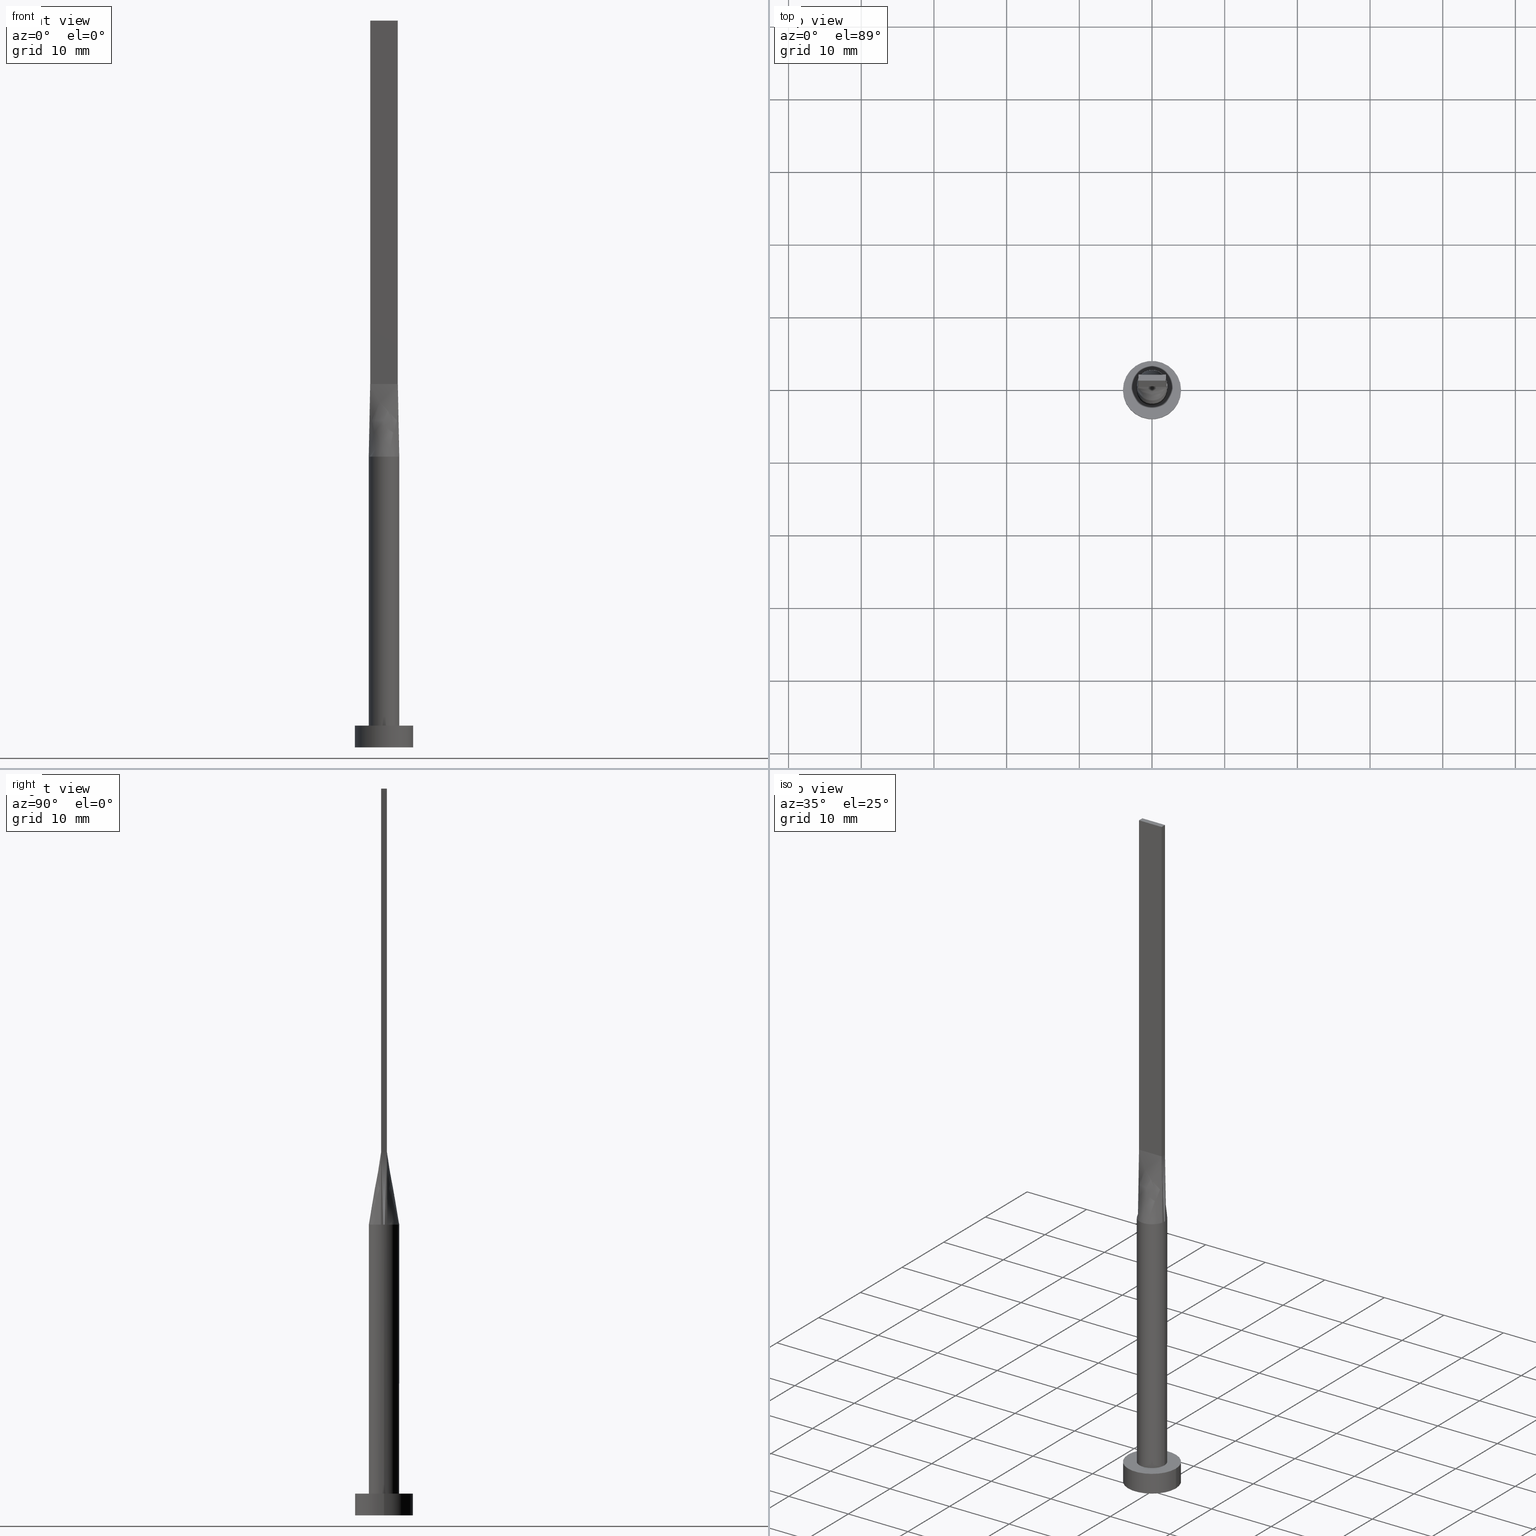
[diagram: canonical four-view strip — front | top / right | iso, engineering-drawing reading convention]
A machine part, canonical four-view strip (front | top / right | iso — engineering-drawing reading convention). The complete STEP part file that produces these views, byte-faithful:
ISO-10303-21;
HEADER;
FILE_DESCRIPTION (( 'STEP AP203' ),
    '1' );
FILE_NAME ('1cda.STEP',
    '2026-02-12T09:04:15',
    ( '' ),
    ( '' ),
    'SwSTEP 2.0',
    'SolidWorks 2019',
    '' );
FILE_SCHEMA (( 'CONFIG_CONTROL_DESIGN' ));
ENDSEC;

DATA;
#1 = DIRECTION ( 'NONE',  ( 1.000000000000000000, 0.000000000000000000, 0.000000000000000000 ) ) ;
#2 = APPROVAL ( #134, 'NEUR�EN�' ) ;
#3 = DIRECTION ( 'NONE',  ( -0.000000000000000000, -0.000000000000000000, -1.000000000000000000 ) ) ;
#4 = CARTESIAN_POINT ( 'NONE',  ( -2.054954548472173403, 0.4326220102046675064, 40.00000000000000000 ) ) ;
#5 = VERTEX_POINT ( 'NONE', #125 ) ;
#6 = ADVANCED_FACE ( 'NONE', ( #75 ), #292, .T. ) ;
#7 = CARTESIAN_POINT ( 'NONE',  ( -1.899999999999999689, 0.4000000000000002442, 50.00000000000000000 ) ) ;
#8 = COORDINATED_UNIVERSAL_TIME_OFFSET ( 1, 0, .AHEAD. ) ;
#9 = LINE ( 'NONE', #190, #352 ) ;
#10 = CARTESIAN_POINT ( 'NONE',  ( 1.899999999999999023, -0.3999999999999998002, 100.0000000000000000 ) ) ;
#11 = COORDINATED_UNIVERSAL_TIME_OFFSET ( 1, 0, .AHEAD. ) ;
#12 = CIRCLE ( 'NONE', #121, 4.000000000000000000 ) ;
#13 = CARTESIAN_POINT ( 'NONE',  ( 1.638039177766651200, -1.336522195786985279, 40.00000000000000000 ) ) ;
#14 = APPROVAL_ROLE ( '' ) ;
#15 = ORIENTED_EDGE ( 'NONE', *, *, #214, .T. ) ;
#16 = LINE ( 'NONE', #154, #310 ) ;
#17 = DIRECTION ( 'NONE',  ( 1.000000000000000000, 0.000000000000000000, 0.000000000000000000 ) ) ;
#18 = CARTESIAN_POINT ( 'NONE',  ( 0.6333333333333337478, -0.3999999999999997446, 50.00000000000000000 ) ) ;
#19 = ADVANCED_FACE ( 'NONE', ( #345 ), #430, .T. ) ;
#20 = CARTESIAN_POINT ( 'NONE',  ( 1.899999999999999689, 0.4000000000000002442, 100.0000000000000000 ) ) ;
#21 = ORIENTED_EDGE ( 'NONE', *, *, #422, .F. ) ;
#22 = ORIENTED_EDGE ( 'NONE', *, *, #285, .F. ) ;
#23 = AXIS2_PLACEMENT_3D ( 'NONE', #132, #80, #566 ) ;
#24 = LINE ( 'NONE', #72, #562 ) ;
#25 = DIRECTION ( 'NONE',  ( 0.000000000000000000, 0.000000000000000000, 1.000000000000000000 ) ) ;
#26 = CARTESIAN_POINT ( 'NONE',  ( 0.5670887265440297531, 2.040296735810463780, 40.00000000000000711 ) ) ;
#27 = CARTESIAN_POINT ( 'NONE',  ( -1.899999999999999689, 0.4000000000000002442, 50.00000000000000000 ) ) ;
#28 = CALENDAR_DATE ( 2026, 12, 2 ) ;
#29 = PRODUCT ( '1cda', '1cda', '', ( #258 ) ) ;
#30 = ORIENTED_EDGE ( 'NONE', *, *, #246, .T. ) ;
#31 = DIRECTION ( 'NONE',  ( 0.000000000000000000, 0.000000000000000000, 1.000000000000000000 ) ) ;
#32 = AXIS2_PLACEMENT_3D ( 'NONE', #241, #333, #508 ) ;
#33 = FACE_OUTER_BOUND ( 'NONE', #442, .T. ) ;
#34 = ADVANCED_FACE ( 'NONE', ( #301 ), #175, .F. ) ;
#35 = EDGE_LOOP ( 'NONE', ( #57, #495, #328, #332 ) ) ;
#36 = CARTESIAN_POINT ( 'NONE',  ( -0.5670887265440298641, 2.040296735810464668, 40.00000000000000711 ) ) ;
#37 = VECTOR ( 'NONE', #69, 1000.000000000000000 ) ;
#38 = ORIENTED_EDGE ( 'NONE', *, *, #108, .F. ) ;
#39 = DATE_TIME_ROLE ( 'creation_date' ) ;
#40 = VECTOR ( 'NONE', #498, 1000.000000000000000 ) ;
#41 = DIRECTION ( 'NONE',  ( 1.000000000000000000, 0.000000000000000000, -0.000000000000000000 ) ) ;
#42 = CARTESIAN_POINT ( 'NONE',  ( -1.899999999999999911, -0.3999999999999995781, 50.00000000000000000 ) ) ;
#43 = APPROVAL_STATUS ( 'not_yet_approved' ) ;
#44 = CC_DESIGN_DATE_AND_TIME_ASSIGNMENT ( #273, #265, ( #297 ) ) ;
#45 = CARTESIAN_POINT ( 'NONE',  ( -0.2839879338753514282, -2.100000000000000533, 39.99999999999999289 ) ) ;
#46 = VECTOR ( 'NONE', #106, 1000.000000000000000 ) ;
#47 = ORIENTED_EDGE ( 'NONE', *, *, #382, .T. ) ;
#48 = PLANE ( 'NONE',  #420 ) ;
#49 = CARTESIAN_POINT ( 'NONE',  ( -1.108333333333332504, -0.3999999999999995781, 50.00000000000000000 ) ) ;
#50 = ADVANCED_FACE ( 'NONE', ( #33 ), #380, .T. ) ;
#51 = FACE_OUTER_BOUND ( 'NONE', #161, .T. ) ;
#52 = CLOSED_SHELL ( 'NONE', ( #251, #197, #61, #118, #144, #414, #187, #453, #6, #50, #290, #34, #576, #470, #19 ) ) ;
#53 = DIRECTION ( 'NONE',  ( -0.000000000000000000, -0.000000000000000000, -1.000000000000000000 ) ) ;
#54 = DIRECTION ( 'NONE',  ( 1.000000000000000000, -8.881784197001252323E-16, 0.000000000000000000 ) ) ;
#55 = CARTESIAN_POINT ( 'NONE',  ( -0.5670887265440306413, -2.040296735810464668, 40.00000000000001421 ) ) ;
#56 = CIRCLE ( 'NONE', #426, 2.100000000000000089 ) ;
#57 = ORIENTED_EDGE ( 'NONE', *, *, #346, .T. ) ;
#58 = CARTESIAN_POINT ( 'NONE',  ( 1.899999999999999023, -0.3999999999999998002, 50.00000000000000000 ) ) ;
#59 = FACE_OUTER_BOUND ( 'NONE', #35, .T. ) ;
#60 = ORIENTED_EDGE ( 'NONE', *, *, #275, .T. ) ;
#61 = ADVANCED_FACE ( 'NONE', ( #483 ), #95, .T. ) ;
#62 = VERTEX_POINT ( 'NONE', #142 ) ;
#63 = DIRECTION ( 'NONE',  ( 0.000000000000000000, 0.000000000000000000, 1.000000000000000000 ) ) ;
#64 = CARTESIAN_POINT ( 'NONE',  ( -1.960396204527856456, 0.7808940436533434726, 40.00000000000000000 ) ) ;
#65 = ORIENTED_EDGE ( 'NONE', *, *, #393, .T. ) ;
#66 = CC_DESIGN_PERSON_AND_ORGANIZATION_ASSIGNMENT ( #497, #104, ( #503 ) ) ;
#67 = CARTESIAN_POINT ( 'NONE',  ( 0.2839879338753505955, 2.100000000000000533, 40.00000000000000000 ) ) ;
#68 = VECTOR ( 'NONE', #386, 1000.000000000000000 ) ;
#69 = DIRECTION ( 'NONE',  ( -1.000000000000000000, -0.000000000000000000, -0.000000000000000000 ) ) ;
#70 = EDGE_CURVE ( 'NONE', #5, #515, #322, .T. ) ;
#71 = PRODUCT_DEFINITION_SHAPE ( 'NONE', 'NONE',  #546 ) ;
#72 = CARTESIAN_POINT ( 'NONE',  ( 4.000000000000000000, 4.898587196589412829E-16, 3.000000000000000000 ) ) ;
#73 = EDGE_LOOP ( 'NONE', ( #65, #92, #78, #309, #208 ) ) ;
#74 = CC_DESIGN_PERSON_AND_ORGANIZATION_ASSIGNMENT ( #428, #388, ( #546 ) ) ;
#75 = FACE_OUTER_BOUND ( 'NONE', #222, .T. ) ;
#76 =( NAMED_UNIT ( * ) PLANE_ANGLE_UNIT ( ) SI_UNIT ( $, .RADIAN. ) );
#77 = LOCAL_TIME ( 10, 4, 15.00000000000000000, #8 ) ;
#78 = ORIENTED_EDGE ( 'NONE', *, *, #81, .T. ) ;
#79 = ORIENTED_EDGE ( 'NONE', *, *, #336, .T. ) ;
#80 = DIRECTION ( 'NONE',  ( 5.706327223607920020E-17, 1.000000000000000000, -0.000000000000000000 ) ) ;
#81 = EDGE_CURVE ( 'NONE', #362, #515, #9, .T. ) ;
#82 = VERTEX_POINT ( 'NONE', #441 ) ;
#83 = CARTESIAN_POINT ( 'NONE',  ( -1.899999999999999689, 0.4000000000000002442, 100.0000000000000000 ) ) ;
#84 = CARTESIAN_POINT ( 'NONE',  ( 0.1583333333333336868, 0.4000000000000001887, 50.00000000000000711 ) ) ;
#85 =( NAMED_UNIT ( * ) SI_UNIT ( $, .STERADIAN. ) SOLID_ANGLE_UNIT ( ) );
#86 = CARTESIAN_POINT ( 'NONE',  ( -1.288188016604684183, 1.676316068528189263, 40.00000000000000711 ) ) ;
#87 = VECTOR ( 'NONE', #335, 1000.000000000000000 ) ;
#88 = DATE_AND_TIME ( #28, #180 ) ;
#89 = CARTESIAN_POINT ( 'NONE',  ( -1.960396204527856456, -0.7808940436533431395, 40.00000000000000711 ) ) ;
#90 = CARTESIAN_POINT ( 'NONE',  ( 2.054954548472172959, 0.4326220102046685612, 40.00000000000000000 ) ) ;
#91 = CARTESIAN_POINT ( 'NONE',  ( -2.100000000000000089, 0.000000000000000000, 3.000000000000000000 ) ) ;
#92 = ORIENTED_EDGE ( 'NONE', *, *, #177, .T. ) ;
#93 = ORIENTED_EDGE ( 'NONE', *, *, #393, .F. ) ;
#94 = FACE_OUTER_BOUND ( 'NONE', #188, .T. ) ;
#95 = CYLINDRICAL_SURFACE ( 'NONE', #116, 4.000000000000000000 ) ;
#96 = LOCAL_TIME ( 10, 4, 15.00000000000000000, #489 ) ;
#97 = ORIENTED_EDGE ( 'NONE', *, *, #514, .F. ) ;
#98 = DIRECTION ( 'NONE',  ( 1.000000000000000000, -5.706327223607918787E-17, 0.000000000000000000 ) ) ;
#99 = CARTESIAN_POINT ( 'NONE',  ( -1.960396204527856456, 0.7808940436533434726, 40.00000000000000000 ) ) ;
#100 = DIRECTION ( 'NONE',  ( -8.131516293641283255E-16, -1.000000000000000000, 0.000000000000000000 ) ) ;
#101 = PERSON ( 'NEUR�EN�', 'NEUR�EN�', 'NEUR�EN�', ('NEUR�EN�'), ('NEUR�EN�'), ('NEUR�EN�') ) ;
#102 = CARTESIAN_POINT ( 'NONE',  ( -0.6333333333333325266, -0.3999999999999996336, 50.00000000000000000 ) ) ;
#103 = ORIENTED_EDGE ( 'NONE', *, *, #285, .T. ) ;
#104 = PERSON_AND_ORGANIZATION_ROLE ( 'design_supplier' ) ;
#105 = ORIENTED_EDGE ( 'NONE', *, *, #230, .T. ) ;
#106 = DIRECTION ( 'NONE',  ( 1.000000000000000000, -5.706327223607920020E-17, 0.000000000000000000 ) ) ;
#107 = CARTESIAN_POINT ( 'NONE',  ( -1.638039177766652976, 1.336522195786985057, 40.00000000000000711 ) ) ;
#108 = EDGE_CURVE ( 'NONE', #533, #558, #405, .T. ) ;
#109 = VERTEX_POINT ( 'NONE', #91 ) ;
#110 = APPROVAL_PERSON_ORGANIZATION ( #127, #2, #296 ) ;
#111 = CARTESIAN_POINT ( 'NONE',  ( 0.2839879338753495963, -2.100000000000000533, 39.99999999999998579 ) ) ;
#112 = LINE ( 'NONE', #242, #87 ) ;
#113 = MANIFOLD_SOLID_BREP ( 'P�idat vysunut�m5', #52 ) ;
#114 = ORIENTED_EDGE ( 'NONE', *, *, #526, .T. ) ;
#115 = ORIENTED_EDGE ( 'NONE', *, *, #214, .F. ) ;
#116 = AXIS2_PLACEMENT_3D ( 'NONE', #396, #149, #535 ) ;
#117 = CARTESIAN_POINT ( 'NONE',  ( 2.055132260641998609, 0.4326595789354660826, 40.00000000000000000 ) ) ;
#118 = ADVANCED_FACE ( 'NONE', ( #181, #542 ), #232, .T. ) ;
#119 = CARTESIAN_POINT ( 'NONE',  ( 0.000000000000000000, 0.000000000000000000, 40.00000000000000000 ) ) ;
#120 = ORIENTED_EDGE ( 'NONE', *, *, #447, .T. ) ;
#121 = AXIS2_PLACEMENT_3D ( 'NONE', #416, #376, #210 ) ;
#122 = CARTESIAN_POINT ( 'NONE',  ( -2.055145036631130129, -0.4326623253166036465, 40.00000000000000000 ) ) ;
#123 = CARTESIAN_POINT ( 'NONE',  ( -2.084662771283844585, 0.2915079518492303956, 40.00000000000000000 ) ) ;
#124 = AXIS2_PLACEMENT_3D ( 'NONE', #318, #539, #41 ) ;
#125 = CARTESIAN_POINT ( 'NONE',  ( 1.899999999999999023, -0.3999999999999998002, 50.00000000000000000 ) ) ;
#126 = EDGE_CURVE ( 'NONE', #567, #82, #521, .T. ) ;
#127 = PERSON_AND_ORGANIZATION ( #101, #248 ) ;
#128 = VECTOR ( 'NONE', #379, 1000.000000000000000 ) ;
#129 = CARTESIAN_POINT ( 'NONE',  ( 0.6333333333333336368, 0.4000000000000001887, 50.00000000000000711 ) ) ;
#130 = DIRECTION ( 'NONE',  ( -2.710505431213761578E-16, -1.000000000000000000, 0.000000000000000000 ) ) ;
#131 = CARTESIAN_POINT ( 'NONE',  ( 0.7916666666666668517, 0.4000000000000001887, 50.00000000000000711 ) ) ;
#132 = CARTESIAN_POINT ( 'NONE',  ( -1.899999999999999911, -0.3999999999999995781, 100.0000000000000000 ) ) ;
#133 = CARTESIAN_POINT ( 'NONE',  ( 2.054954548472173403, 0.4326220102046680616, 40.00000000000000000 ) ) ;
#134 = APPROVAL_STATUS ( 'not_yet_approved' ) ;
#135 = CARTESIAN_POINT ( 'NONE',  ( 0.000000000000000000, 0.000000000000000000, 40.00000000000000000 ) ) ;
#136 = AXIS2_PLACEMENT_3D ( 'NONE', #314, #263, #189 ) ;
#137 = ORIENTED_EDGE ( 'NONE', *, *, #246, .F. ) ;
#138 = CALENDAR_DATE ( 2026, 12, 2 ) ;
#139 = DIRECTION ( 'NONE',  ( 1.000000000000000000, 0.000000000000000000, 0.000000000000000000 ) ) ;
#140 = VERTEX_POINT ( 'NONE', #494 ) ;
#141 = CARTESIAN_POINT ( 'NONE',  ( 1.899999999999999689, -0.1333333333333334147, 50.00000000000000000 ) ) ;
#142 = CARTESIAN_POINT ( 'NONE',  ( 2.100000000000000089, 2.571758278209441957E-16, 3.000000000000000000 ) ) ;
#143 = DIRECTION ( 'NONE',  ( -1.000000000000000000, 8.131516293641283255E-16, 0.000000000000000000 ) ) ;
#144 = ADVANCED_FACE ( 'NONE', ( #574 ), #271, .F. ) ;
#145 = CARTESIAN_POINT ( 'NONE',  ( -2.019676033883313959, 0.6001949545017503107, 39.99999999999999289 ) ) ;
#146 = VECTOR ( 'NONE', #465, 1000.000000000000227 ) ;
#147 = FACE_OUTER_BOUND ( 'NONE', #73, .T. ) ;
#148 = PERSON_AND_ORGANIZATION ( #101, #248 ) ;
#149 = DIRECTION ( 'NONE',  ( -0.000000000000000000, -0.000000000000000000, -1.000000000000000000 ) ) ;
#150 = ORIENTED_EDGE ( 'NONE', *, *, #163, .T. ) ;
#151 = CARTESIAN_POINT ( 'NONE',  ( -1.899999999999999911, -0.3999999999999995781, 100.0000000000000000 ) ) ;
#152 = CC_DESIGN_PERSON_AND_ORGANIZATION_ASSIGNMENT ( #433, #523, ( #29 ) ) ;
#153 = EDGE_LOOP ( 'NONE', ( #359, #47, #331, #467, #38, #458 ) ) ;
#154 = CARTESIAN_POINT ( 'NONE',  ( -1.977477274236086657, -0.4163110051023335423, 45.00000000000000000 ) ) ;
#155 = APPROVAL ( #43, 'NEUR�EN�' ) ;
#156 = DIRECTION ( 'NONE',  ( -0.000000000000000000, -0.000000000000000000, -1.000000000000000000 ) ) ;
#157 = AXIS2_PLACEMENT_3D ( 'NONE', #415, #63, #371 ) ;
#158 = ORIENTED_EDGE ( 'NONE', *, *, #354, .T. ) ;
#159 = CYLINDRICAL_SURFACE ( 'NONE', #32, 4.000000000000000000 ) ;
#160 = CARTESIAN_POINT ( 'NONE',  ( 1.288188016604684183, 1.676316068528189041, 40.00000000000000711 ) ) ;
#161 = EDGE_LOOP ( 'NONE', ( #319, #93, #115, #373, #150, #279 ) ) ;
#162 = ORIENTED_EDGE ( 'NONE', *, *, #475, .T. ) ;
#163 = EDGE_CURVE ( 'NONE', #558, #109, #179, .T. ) ;
#164 = ORIENTED_EDGE ( 'NONE', *, *, #447, .F. ) ;
#165 = AXIS2_PLACEMENT_3D ( 'NONE', #313, #261, #306 ) ;
#166 = CARTESIAN_POINT ( 'NONE',  ( -4.000000000000000000, 0.000000000000000000, 3.000000000000000000 ) ) ;
#167 = DIRECTION ( 'NONE',  ( -0.000000000000000000, -0.000000000000000000, -1.000000000000000000 ) ) ;
#168 = ORIENTED_EDGE ( 'NONE', *, *, #561, .T. ) ;
#169 = CARTESIAN_POINT ( 'NONE',  ( -2.054954548472173403, 0.4326220102046679505, 40.00000000000000000 ) ) ;
#170 = CARTESIAN_POINT ( 'NONE',  ( -1.899999999999999467, 0.1333333333333334703, 50.00000000000000000 ) ) ;
#171 = APPLICATION_PROTOCOL_DEFINITION ( 'international standard', 'config_control_design', 1994, #327 ) ;
#172 = CARTESIAN_POINT ( 'NONE',  ( -2.054954548472173403, -0.4326220102046674509, 40.00000000000000000 ) ) ;
#173 = CARTESIAN_POINT ( 'NONE',  ( 1.899999999999999689, 0.4000000000000002442, 50.00000000000000000 ) ) ;
#174 = VECTOR ( 'NONE', #364, 1000.000000000000000 ) ;
#175 = PLANE ( 'NONE',  #293 ) ;
#176 = CALENDAR_DATE ( 2026, 12, 2 ) ;
#177 = EDGE_CURVE ( 'NONE', #466, #362, #341, .T. ) ;
#178 = EDGE_LOOP ( 'NONE', ( #193, #323 ) ) ;
#179 = LINE ( 'NONE', #226, #499 ) ;
#180 = LOCAL_TIME ( 10, 4, 15.00000000000000000, #350 ) ;
#181 = FACE_BOUND ( 'NONE', #178, .T. ) ;
#182 = VECTOR ( 'NONE', #392, 1000.000000000000000 ) ;
#183 = ORIENTED_EDGE ( 'NONE', *, *, #300, .F. ) ;
#184 = CARTESIAN_POINT ( 'NONE',  ( 1.899999999999999023, -0.3999999999999998002, 100.0000000000000000 ) ) ;
#185 = CARTESIAN_POINT ( 'NONE',  ( -1.741666666666666474, 0.4000000000000002442, 50.00000000000000000 ) ) ;
#186 = ORIENTED_EDGE ( 'NONE', *, *, #354, .F. ) ;
#187 = ADVANCED_FACE ( 'NONE', ( #274 ), #245, .T. ) ;
#188 = EDGE_LOOP ( 'NONE', ( #511, #97, #164, #168 ) ) ;
#189 = DIRECTION ( 'NONE',  ( 1.000000000000000000, 0.000000000000000000, 0.000000000000000000 ) ) ;
#190 = CARTESIAN_POINT ( 'NONE',  ( 1.977477274236086213, 0.4163110051023343749, 45.00000000000000000 ) ) ;
#191 = LINE ( 'NONE', #229, #434 ) ;
#192 = PERSON_AND_ORGANIZATION ( #101, #248 ) ;
#193 = ORIENTED_EDGE ( 'NONE', *, *, #404, .F. ) ;
#194 = CARTESIAN_POINT ( 'NONE',  ( -1.288188016604684627, -1.676316068528187930, 39.99999999999998579 ) ) ;
#195 =( GEOMETRIC_REPRESENTATION_CONTEXT ( 3 ) GLOBAL_UNCERTAINTY_ASSIGNED_CONTEXT ( ( #464 ) ) GLOBAL_UNIT_ASSIGNED_CONTEXT ( ( #356, #76, #85 ) ) REPRESENTATION_CONTEXT ( 'NONE', 'WORKASPACE' ) );
#196 = CARTESIAN_POINT ( 'NONE',  ( 1.899999999999999911, -0.3999999999999998002, 50.00000000000000000 ) ) ;
#197 = ADVANCED_FACE ( 'NONE', ( #555 ), #159, .T. ) ;
#198 = CARTESIAN_POINT ( 'NONE',  ( 2.019676033883313071, -0.6001949545017514209, 40.00000000000000711 ) ) ;
#199 = PERSON_AND_ORGANIZATION_ROLE ( 'creator' ) ;
#200 = ORIENTED_EDGE ( 'NONE', *, *, #561, .F. ) ;
#201 = CARTESIAN_POINT ( 'NONE',  ( 1.108333333333333171, -0.3999999999999997446, 50.00000000000000000 ) ) ;
#202 = LINE ( 'NONE', #510, #554 ) ;
#203 = EDGE_LOOP ( 'NONE', ( #79, #114, #553, #120 ) ) ;
#204 = CARTESIAN_POINT ( 'NONE',  ( 0.7916666666666667407, -0.3999999999999997446, 50.00000000000000000 ) ) ;
#205 = LINE ( 'NONE', #519, #504 ) ;
#206 = CIRCLE ( 'NONE', #136, 2.100000000000000089 ) ;
#207 = CARTESIAN_POINT ( 'NONE',  ( 0.000000000000000000, 0.000000000000000000, 3.000000000000000000 ) ) ;
#208 = ORIENTED_EDGE ( 'NONE', *, *, #475, .F. ) ;
#209 = EDGE_CURVE ( 'NONE', #463, #343, #16, .T. ) ;
#210 = DIRECTION ( 'NONE',  ( 1.000000000000000000, 0.000000000000000000, 0.000000000000000000 ) ) ;
#211 = B_SPLINE_SURFACE_WITH_KNOTS ( 'NONE', 3, 1, ( 
 ( #235, #196 ),
 ( #487, #541 ),
 ( #481, #141 ),
 ( #320, #496 ),
 ( #239, #370 ),
 ( #90, #406 ) ),
 .UNSPECIFIED., .F., .F., .F.,
 ( 4, 2, 4 ),
 ( 2, 2 ),
 ( 0.000000000000000000, 0.5000000000000000000, 1.000000000000000000 ),
 ( 0.000000000000000000, 1.000000000000000000 ),
 .UNSPECIFIED. ) ;
#212 = CARTESIAN_POINT ( 'NONE',  ( 1.769939800381044259, 1.149026496286139620, 40.00000000000000000 ) ) ;
#213 = AXIS2_PLACEMENT_3D ( 'NONE', #20, #337, #281 ) ;
#214 = EDGE_CURVE ( 'NONE', #343, #513, #538, .T. ) ;
#215 = DIRECTION ( 'NONE',  ( 1.000000000000000000, -2.710505431213761578E-16, 0.000000000000000000 ) ) ;
#216 = APPROVAL_STATUS ( 'not_yet_approved' ) ;
#217 = CARTESIAN_POINT ( 'NONE',  ( 1.960396204527856900, 0.7808940436533436946, 40.00000000000002132 ) ) ;
#218 = DIRECTION ( 'NONE',  ( 1.000000000000000000, 0.000000000000000000, 0.000000000000000000 ) ) ;
#219 = CARTESIAN_POINT ( 'NONE',  ( 1.899999999999999689, 0.4000000000000002442, 50.00000000000000000 ) ) ;
#220 = EDGE_CURVE ( 'NONE', #484, #502, #549, .T. ) ;
#221 = AXIS2_PLACEMENT_3D ( 'NONE', #531, #31, #218 ) ;
#222 = EDGE_LOOP ( 'NONE', ( #291, #536, #507, #578, #557 ) ) ;
#223 = CARTESIAN_POINT ( 'NONE',  ( -2.099758441344840243, -1.448674240509545331E-15, 40.00000000000000000 ) ) ;
#224 = CARTESIAN_POINT ( 'NONE',  ( -1.638039177766652976, 1.336522195786985057, 40.00000000000000711 ) ) ;
#225 = PERSON_AND_ORGANIZATION ( #101, #248 ) ;
#226 = CARTESIAN_POINT ( 'NONE',  ( -2.100000000000000089, 0.000000000000000000, 40.00000000000000000 ) ) ;
#227 = VERTEX_POINT ( 'NONE', #280 ) ;
#228 = ORIENTED_EDGE ( 'NONE', *, *, #526, .F. ) ;
#229 = CARTESIAN_POINT ( 'NONE',  ( 1.977477274236086213, -0.4163110051023340419, 45.00000000000000000 ) ) ;
#230 = EDGE_CURVE ( 'NONE', #140, #282, #472, .T. ) ;
#231 = CC_DESIGN_APPROVAL ( #564, ( #503 ) ) ;
#232 = PLANE ( 'NONE',  #124 ) ;
#233 = ORIENTED_EDGE ( 'NONE', *, *, #422, .T. ) ;
#234 = ORIENTED_EDGE ( 'NONE', *, *, #363, .T. ) ;
#235 = CARTESIAN_POINT ( 'NONE',  ( 2.054954548472172959, -0.4326220102046691163, 40.00000000000000000 ) ) ;
#236 = CARTESIAN_POINT ( 'NONE',  ( -1.583333333333333037, 0.4000000000000002442, 50.00000000000000000 ) ) ;
#237 = CARTESIAN_POINT ( 'NONE',  ( 2.100000000000000089, 2.571758278209441957E-16, 40.00000000000000000 ) ) ;
#238 = CARTESIAN_POINT ( 'NONE',  ( -1.638039177766652310, -1.336522195786983724, 39.99999999999999289 ) ) ;
#239 = CARTESIAN_POINT ( 'NONE',  ( 2.084662771283844140, 0.2915079518492307287, 40.00000000000000000 ) ) ;
#240 = DIRECTION ( 'NONE',  ( -0.01549351246150988334, -0.003261792097160004338, 0.9998746480354023802 ) ) ;
#241 = CARTESIAN_POINT ( 'NONE',  ( 0.000000000000000000, 0.000000000000000000, 3.000000000000000000 ) ) ;
#242 = CARTESIAN_POINT ( 'NONE',  ( -1.899999999999999911, -0.3999999999999995781, 100.0000000000000000 ) ) ;
#243 = CARTESIAN_POINT ( 'NONE',  ( 2.054954548472172959, -0.4326220102046682281, 40.00000000000000000 ) ) ;
#244 = LINE ( 'NONE', #166, #368 ) ;
#245 = B_SPLINE_SURFACE_WITH_KNOTS ( 'NONE', 3, 1, ( 
 ( #358, #480 ),
 ( #355, #450 ),
 ( #89, #369 ),
 ( #266, #547 ),
 ( #238, #49 ),
 ( #194, #490 ),
 ( #452, #102 ),
 ( #55, #437 ),
 ( #45, #399 ),
 ( #111, #412 ),
 ( #329, #418 ),
 ( #325, #18 ),
 ( #377, #204 ),
 ( #13, #201 ),
 ( #505, #500 ),
 ( #374, #551 ),
 ( #198, #283 ),
 ( #243, #58 ) ),
 .UNSPECIFIED., .F., .F., .F.,
 ( 4, 2, 2, 2, 2, 2, 2, 2, 4 ),
 ( 2, 2 ),
 ( 0.000000000000000000, 0.1250000000000000833, 0.2500000000000001110, 0.3750000000000001110, 0.5000000000000001110, 0.6250000000000001110, 0.7500000000000000000, 0.8750000000000000000, 1.000000000000000000 ),
 ( 0.000000000000000000, 1.000000000000000000 ),
 .UNSPECIFIED. ) ;
#246 = EDGE_CURVE ( 'NONE', #82, #567, #12, .T. ) ;
#247 = CARTESIAN_POINT ( 'NONE',  ( -1.288188016604684183, 1.676316068528189263, 40.00000000000000711 ) ) ;
#248 = ORGANIZATION ( 'NEUR�EN�', 'NEUR�EN�', '' ) ;
#249 = CARTESIAN_POINT ( 'NONE',  ( 2.055132260641998609, 0.4326595789354660826, 40.00000000000000000 ) ) ;
#250 = CARTESIAN_POINT ( 'NONE',  ( 2.019676033883313515, 0.6001949545017501997, 39.99999999999998579 ) ) ;
#251 = ADVANCED_FACE ( 'NONE', ( #468 ), #381, .T. ) ;
#252 = CARTESIAN_POINT ( 'NONE',  ( -2.099516882689679953, -0.1457539759246147815, 40.00000000000000000 ) ) ;
#253 = CARTESIAN_POINT ( 'NONE',  ( 0.000000000000000000, 0.000000000000000000, 100.0000000000000000 ) ) ;
#254 = LINE ( 'NONE', #395, #68 ) ;
#255 = EDGE_CURVE ( 'NONE', #533, #444, #421, .T. ) ;
#256 = CARTESIAN_POINT ( 'NONE',  ( -2.099516882689679953, 0.1457539759246153366, 40.00000000000000000 ) ) ;
#257 = CARTESIAN_POINT ( 'NONE',  ( 1.266666666666666607, 0.4000000000000001887, 50.00000000000000000 ) ) ;
#258 = MECHANICAL_CONTEXT ( 'NONE', #327, 'mechanical' ) ;
#259 = AXIS2_PLACEMENT_3D ( 'NONE', #119, #423, #560 ) ;
#260 = CARTESIAN_POINT ( 'NONE',  ( -0.7916666666666662966, 0.4000000000000002442, 50.00000000000000000 ) ) ;
#261 = DIRECTION ( 'NONE',  ( 0.000000000000000000, 0.000000000000000000, 1.000000000000000000 ) ) ;
#262 = ORIENTED_EDGE ( 'NONE', *, *, #81, .F. ) ;
#263 = DIRECTION ( 'NONE',  ( 0.000000000000000000, 0.000000000000000000, 1.000000000000000000 ) ) ;
#264 = EDGE_CURVE ( 'NONE', #558, #343, #338, .T. ) ;
#265 = DATE_TIME_ROLE ( 'classification_date' ) ;
#266 = CARTESIAN_POINT ( 'NONE',  ( -1.769939800381044481, -1.149026496286139176, 40.00000000000000000 ) ) ;
#267 = ORIENTED_EDGE ( 'NONE', *, *, #126, .T. ) ;
#268 = EDGE_LOOP ( 'NONE', ( #543, #137 ) ) ;
#269 = CARTESIAN_POINT ( 'NONE',  ( 0.000000000000000000, 0.000000000000000000, 40.00000000000000000 ) ) ;
#270 = CIRCLE ( 'NONE', #357, 4.000000000000000000 ) ;
#271 = PLANE ( 'NONE',  #436 ) ;
#272 = CARTESIAN_POINT ( 'NONE',  ( 2.099758441344840243, 4.928843353830161703E-16, 40.00000000000000000 ) ) ;
#273 = DATE_AND_TIME ( #138, #96 ) ;
#274 = FACE_OUTER_BOUND ( 'NONE', #460, .T. ) ;
#275 = EDGE_CURVE ( 'NONE', #227, #444, #202, .T. ) ;
#276 = DIRECTION ( 'NONE',  ( -0.01549351246150994753, 0.003261792097160015180, 0.9998746480354023802 ) ) ;
#277 = CARTESIAN_POINT ( 'NONE',  ( 0.000000000000000000, 0.000000000000000000, 0.000000000000000000 ) ) ;
#278 = PERSON_AND_ORGANIZATION ( #101, #248 ) ;
#279 = ORIENTED_EDGE ( 'NONE', *, *, #404, .T. ) ;
#280 = CARTESIAN_POINT ( 'NONE',  ( -1.899999999999999689, 0.4000000000000002442, 100.0000000000000000 ) ) ;
#281 = DIRECTION ( 'NONE',  ( 0.000000000000000000, -0.000000000000000000, -1.000000000000000000 ) ) ;
#282 = VERTEX_POINT ( 'NONE', #286 ) ;
#283 = CARTESIAN_POINT ( 'NONE',  ( 1.741666666666665808, -0.3999999999999997446, 50.00000000000000000 ) ) ;
#284 = CARTESIAN_POINT ( 'NONE',  ( -1.899999999999999689, 0.4000000000000002442, 50.00000000000000000 ) ) ;
#285 = EDGE_CURVE ( 'NONE', #140, #567, #244, .T. ) ;
#286 = CARTESIAN_POINT ( 'NONE',  ( 4.000000000000000000, 4.898587196589412829E-16, 3.000000000000000000 ) ) ;
#287 = DIRECTION ( 'NONE',  ( 0.000000000000000000, 0.000000000000000000, 1.000000000000000000 ) ) ;
#288 = AXIS2_PLACEMENT_3D ( 'NONE', #455, #287, #383 ) ;
#289 = CARTESIAN_POINT ( 'NONE',  ( -1.899999999999999689, 0.4000000000000002442, 50.00000000000000000 ) ) ;
#290 = ADVANCED_FACE ( 'NONE', ( #59 ), #516, .F. ) ;
#291 = ORIENTED_EDGE ( 'NONE', *, *, #108, .T. ) ;
#292 = B_SPLINE_SURFACE_WITH_KNOTS ( 'NONE', 3, 1, ( 
 ( #169, #27 ),
 ( #123, #527 ),
 ( #256, #170 ),
 ( #252, #303 ),
 ( #294, #565 ),
 ( #172, #353 ) ),
 .UNSPECIFIED., .F., .F., .F.,
 ( 4, 2, 4 ),
 ( 2, 2 ),
 ( 0.000000000000000000, 0.5000000000000000000, 1.000000000000000000 ),
 ( 0.000000000000000000, 1.000000000000000000 ),
 .UNSPECIFIED. ) ;
#293 = AXIS2_PLACEMENT_3D ( 'NONE', #524, #215, #469 ) ;
#294 = CARTESIAN_POINT ( 'NONE',  ( -2.084662771283844140, -0.2915079518492298405, 40.00000000000000000 ) ) ;
#295 = CARTESIAN_POINT ( 'NONE',  ( 1.288188016604684183, 1.676316068528189041, 40.00000000000000711 ) ) ;
#296 = APPROVAL_ROLE ( '' ) ;
#297 = SECURITY_CLASSIFICATION ( '', '', #402 ) ;
#298 = CARTESIAN_POINT ( 'NONE',  ( 0.5670887265440297531, 2.040296735810463780, 40.00000000000000711 ) ) ;
#299 = DESIGN_CONTEXT ( 'detailed design', #400, 'design' ) ;
#300 = EDGE_CURVE ( 'NONE', #484, #463, #112, .T. ) ;
#301 = FACE_OUTER_BOUND ( 'NONE', #509, .T. ) ;
#302 = CARTESIAN_POINT ( 'NONE',  ( 1.899999999999999023, -0.3999999999999998002, 100.0000000000000000 ) ) ;
#303 = CARTESIAN_POINT ( 'NONE',  ( -1.899999999999999689, -0.1333333333333331094, 50.00000000000000000 ) ) ;
#304 = DATE_AND_TIME ( #176, #348 ) ;
#305 = VECTOR ( 'NONE', #3, 1000.000000000000000 ) ;
#306 = DIRECTION ( 'NONE',  ( 1.000000000000000000, 0.000000000000000000, 0.000000000000000000 ) ) ;
#307 = DIRECTION ( 'NONE',  ( 1.000000000000000000, 0.000000000000000000, 0.000000000000000000 ) ) ;
#308 = CARTESIAN_POINT ( 'NONE',  ( 0.000000000000000000, 0.000000000000000000, 0.000000000000000000 ) ) ;
#309 = ORIENTED_EDGE ( 'NONE', *, *, #70, .F. ) ;
#310 = VECTOR ( 'NONE', #459, 1000.000000000000227 ) ;
#311 = EDGE_LOOP ( 'NONE', ( #443, #158, #30, #22 ) ) ;
#312 = LINE ( 'NONE', #439, #398 ) ;
#313 = CARTESIAN_POINT ( 'NONE',  ( 0.000000000000000000, 0.000000000000000000, 40.00000000000000000 ) ) ;
#314 = CARTESIAN_POINT ( 'NONE',  ( 0.000000000000000000, 0.000000000000000000, 3.000000000000000000 ) ) ;
#315 = CALENDAR_DATE ( 2026, 12, 2 ) ;
#316 = EDGE_CURVE ( 'NONE', #62, #109, #411, .T. ) ;
#317 = CC_DESIGN_SECURITY_CLASSIFICATION ( #297, ( #503 ) ) ;
#318 = CARTESIAN_POINT ( 'NONE',  ( 0.000000000000000000, 0.000000000000000000, 3.000000000000000000 ) ) ;
#319 = ORIENTED_EDGE ( 'NONE', *, *, #382, .F. ) ;
#320 = CARTESIAN_POINT ( 'NONE',  ( 2.099516882689679953, 0.1457539759246152533, 40.00000000000000000 ) ) ;
#321 = B_SPLINE_CURVE_WITH_KNOTS ( 'NONE', 3,
 ( #117, #250, #424, #212, #563, #160, #556, #26, #67, #384, #326, #501, #247, #107, #461, #64, #397, #449 ),
 .UNSPECIFIED., .F., .F.,
 ( 4, 2, 2, 2, 2, 2, 2, 2, 4 ),
 ( 0.000000000000000000, 0.1250000000000000000, 0.2500000000000000000, 0.3750000000000000000, 0.5000000000000000000, 0.6250000000000000000, 0.7500000000000000000, 0.8750000000000000000, 1.000000000000000000 ),
 .UNSPECIFIED. ) ;
#322 = LINE ( 'NONE', #361, #40 ) ;
#323 = ORIENTED_EDGE ( 'NONE', *, *, #316, .F. ) ;
#324 = APPROVAL_DATE_TIME ( #482, #155 ) ;
#325 = CARTESIAN_POINT ( 'NONE',  ( 1.069497409764670115, -1.827724181718573204, 40.00000000000002132 ) ) ;
#326 = CARTESIAN_POINT ( 'NONE',  ( -0.5670887265440298641, 2.040296735810464668, 40.00000000000000711 ) ) ;
#327 = APPLICATION_CONTEXT ( 'configuration controlled 3d designs of mechanical parts and assemblies' ) ;
#328 = ORIENTED_EDGE ( 'NONE', *, *, #336, .F. ) ;
#329 = CARTESIAN_POINT ( 'NONE',  ( 0.5670887265440289760, -2.040296735810464668, 40.00000000000001421 ) ) ;
#330 = DIRECTION ( 'NONE',  ( 0.000000000000000000, 0.000000000000000000, 1.000000000000000000 ) ) ;
#331 = ORIENTED_EDGE ( 'NONE', *, *, #316, .T. ) ;
#332 = ORIENTED_EDGE ( 'NONE', *, *, #514, .T. ) ;
#333 = DIRECTION ( 'NONE',  ( -0.000000000000000000, -0.000000000000000000, -1.000000000000000000 ) ) ;
#334 = CARTESIAN_POINT ( 'NONE',  ( -1.977477274236086657, 0.4163110051023338753, 45.00000000000000000 ) ) ;
#335 = DIRECTION ( 'NONE',  ( -0.000000000000000000, -0.000000000000000000, -1.000000000000000000 ) ) ;
#336 = EDGE_CURVE ( 'NONE', #408, #227, #205, .T. ) ;
#337 = DIRECTION ( 'NONE',  ( 0.000000000000000000, -1.000000000000000000, 0.000000000000000000 ) ) ;
#338 = CIRCLE ( 'NONE', #446, 2.100000000000000089 ) ;
#339 = PRODUCT_RELATED_PRODUCT_CATEGORY ( 'detail', '', ( #29 ) ) ;
#340 = CARTESIAN_POINT ( 'NONE',  ( -1.769939800381045147, 1.149026496286139842, 40.00000000000000711 ) ) ;
#341 = CIRCLE ( 'NONE', #165, 2.100000000000000089 ) ;
#342 = CARTESIAN_POINT ( 'NONE',  ( 1.741666666666666474, 0.4000000000000002442, 50.00000000000000000 ) ) ;
#343 = VERTEX_POINT ( 'NONE', #122 ) ;
#344 = APPLICATION_PROTOCOL_DEFINITION ( 'international standard', 'config_control_design', 1994, #400 ) ;
#345 = FACE_OUTER_BOUND ( 'NONE', #203, .T. ) ;
#346 = EDGE_CURVE ( 'NONE', #515, #444, #552, .T. ) ;
#347 = FACE_OUTER_BOUND ( 'NONE', #486, .T. ) ;
#348 = LOCAL_TIME ( 10, 4, 15.00000000000000000, #390 ) ;
#349 = ORIENTED_EDGE ( 'NONE', *, *, #300, .T. ) ;
#350 = COORDINATED_UNIVERSAL_TIME_OFFSET ( 1, 0, .AHEAD. ) ;
#351 = CC_DESIGN_PERSON_AND_ORGANIZATION_ASSIGNMENT ( #278, #199, ( #503 ) ) ;
#352 = VECTOR ( 'NONE', #240, 1000.000000000000227 ) ;
#353 = CARTESIAN_POINT ( 'NONE',  ( -1.899999999999999911, -0.3999999999999995781, 50.00000000000000000 ) ) ;
#354 = EDGE_CURVE ( 'NONE', #282, #82, #24, .T. ) ;
#355 = CARTESIAN_POINT ( 'NONE',  ( -2.019676033883314403, -0.6001949545017496446, 40.00000000000000000 ) ) ;
#356 =( LENGTH_UNIT ( ) NAMED_UNIT ( * ) SI_UNIT ( .MILLI., .METRE. ) );
#357 = AXIS2_PLACEMENT_3D ( 'NONE', #360, #479, #307 ) ;
#358 = CARTESIAN_POINT ( 'NONE',  ( -2.054954548472173403, -0.4326220102046674509, 40.00000000000000000 ) ) ;
#359 = ORIENTED_EDGE ( 'NONE', *, *, #177, .F. ) ;
#360 = CARTESIAN_POINT ( 'NONE',  ( 0.000000000000000000, 0.000000000000000000, 3.000000000000000000 ) ) ;
#361 = CARTESIAN_POINT ( 'NONE',  ( 1.899999999999999689, 0.4000000000000002442, 50.00000000000000000 ) ) ;
#362 = VERTEX_POINT ( 'NONE', #249 ) ;
#363 = EDGE_CURVE ( 'NONE', #444, #463, #506, .T. ) ;
#364 = DIRECTION ( 'NONE',  ( 8.131516293641283255E-16, 1.000000000000000000, 0.000000000000000000 ) ) ;
#365 = DATE_AND_TIME ( #413, #77 ) ;
#366 = CARTESIAN_POINT ( 'NONE',  ( -1.266666666666666385, 0.4000000000000001887, 50.00000000000000000 ) ) ;
#367 = LINE ( 'NONE', #237, #305 ) ;
#368 = VECTOR ( 'NONE', #167, 1000.000000000000000 ) ;
#369 = CARTESIAN_POINT ( 'NONE',  ( -1.583333333333332815, -0.3999999999999995226, 50.00000000000000000 ) ) ;
#370 = CARTESIAN_POINT ( 'NONE',  ( 1.899999999999999467, 0.2666666666666666630, 50.00000000000000000 ) ) ;
#371 = DIRECTION ( 'NONE',  ( 1.000000000000000000, 0.000000000000000000, 0.000000000000000000 ) ) ;
#372 = AXIS2_PLACEMENT_3D ( 'NONE', #135, #577, #1 ) ;
#373 = ORIENTED_EDGE ( 'NONE', *, *, #264, .F. ) ;
#374 = CARTESIAN_POINT ( 'NONE',  ( 1.960396204527856234, -0.7808940436533445828, 40.00000000000000000 ) ) ;
#375 = EDGE_CURVE ( 'NONE', #362, #533, #321, .T. ) ;
#376 = DIRECTION ( 'NONE',  ( 0.000000000000000000, 0.000000000000000000, 1.000000000000000000 ) ) ;
#377 = CARTESIAN_POINT ( 'NONE',  ( 1.288188016604683739, -1.676316068528189263, 40.00000000000001421 ) ) ;
#378 = AXIS2_PLACEMENT_3D ( 'NONE', #207, #330, #17 ) ;
#379 = DIRECTION ( 'NONE',  ( -2.710505431213761578E-16, -1.000000000000000000, 0.000000000000000000 ) ) ;
#380 = B_SPLINE_SURFACE_WITH_KNOTS ( 'NONE', 3, 1, ( 
 ( #133, #219 ),
 ( #425, #342 ),
 ( #217, #435 ),
 ( #522, #257 ),
 ( #387, #476 ),
 ( #295, #131 ),
 ( #471, #129 ),
 ( #298, #474 ),
 ( #389, #84 ),
 ( #432, #391 ),
 ( #36, #572 ),
 ( #530, #478 ),
 ( #86, #260 ),
 ( #224, #394 ),
 ( #340, #366 ),
 ( #99, #236 ),
 ( #145, #185 ),
 ( #4, #403 ) ),
 .UNSPECIFIED., .F., .F., .F.,
 ( 4, 2, 2, 2, 2, 2, 2, 2, 4 ),
 ( 2, 2 ),
 ( 0.000000000000000000, 0.1250000000000000000, 0.2500000000000000000, 0.3750000000000000000, 0.5000000000000000000, 0.6250000000000000000, 0.7500000000000000000, 0.8750000000000000000, 1.000000000000000000 ),
 ( 0.000000000000000000, 1.000000000000000000 ),
 .UNSPECIFIED. ) ;
#381 = CYLINDRICAL_SURFACE ( 'NONE', #259, 2.100000000000000089 ) ;
#382 = EDGE_CURVE ( 'NONE', #466, #62, #367, .T. ) ;
#383 = DIRECTION ( 'NONE',  ( 1.000000000000000000, 0.000000000000000000, 0.000000000000000000 ) ) ;
#384 = CARTESIAN_POINT ( 'NONE',  ( -0.2839879338753505955, 2.100000000000000533, 39.99999999999998579 ) ) ;
#385 = DIRECTION ( 'NONE',  ( 1.000000000000000000, 0.000000000000000000, -0.000000000000000000 ) ) ;
#386 = DIRECTION ( 'NONE',  ( -0.000000000000000000, -0.000000000000000000, -1.000000000000000000 ) ) ;
#387 = CARTESIAN_POINT ( 'NONE',  ( 1.638039177766652754, 1.336522195786985057, 40.00000000000000711 ) ) ;
#388 = PERSON_AND_ORGANIZATION_ROLE ( 'creator' ) ;
#389 = CARTESIAN_POINT ( 'NONE',  ( 0.2839879338753505955, 2.100000000000000533, 40.00000000000000000 ) ) ;
#390 = COORDINATED_UNIVERSAL_TIME_OFFSET ( 1, 0, .AHEAD. ) ;
#391 = CARTESIAN_POINT ( 'NONE',  ( -0.1583333333333329651, 0.4000000000000001887, 50.00000000000000711 ) ) ;
#392 = DIRECTION ( 'NONE',  ( -0.000000000000000000, -0.000000000000000000, -1.000000000000000000 ) ) ;
#393 = EDGE_CURVE ( 'NONE', #513, #466, #56, .T. ) ;
#394 = CARTESIAN_POINT ( 'NONE',  ( -1.108333333333333171, 0.4000000000000001887, 50.00000000000000000 ) ) ;
#395 = CARTESIAN_POINT ( 'NONE',  ( 1.899999999999999689, 0.4000000000000002442, 100.0000000000000000 ) ) ;
#396 = CARTESIAN_POINT ( 'NONE',  ( 0.000000000000000000, 0.000000000000000000, 3.000000000000000000 ) ) ;
#397 = CARTESIAN_POINT ( 'NONE',  ( -2.019676033883313959, 0.6001949545017503107, 39.99999999999999289 ) ) ;
#398 = VECTOR ( 'NONE', #98, 1000.000000000000000 ) ;
#399 = CARTESIAN_POINT ( 'NONE',  ( -0.1583333333333327708, -0.3999999999999996336, 50.00000000000000000 ) ) ;
#400 = APPLICATION_CONTEXT ( 'configuration controlled 3d designs of mechanical parts and assemblies' ) ;
#401 = CARTESIAN_POINT ( 'NONE',  ( 0.000000000000000000, 0.000000000000000000, 40.00000000000000000 ) ) ;
#402 = SECURITY_CLASSIFICATION_LEVEL ( 'unclassified' ) ;
#403 = CARTESIAN_POINT ( 'NONE',  ( -1.899999999999999689, 0.4000000000000002442, 50.00000000000000000 ) ) ;
#404 = EDGE_CURVE ( 'NONE', #109, #62, #206, .T. ) ;
#405 = CIRCLE ( 'NONE', #372, 2.100000000000000089 ) ;
#406 = CARTESIAN_POINT ( 'NONE',  ( 1.899999999999999689, 0.4000000000000002442, 50.00000000000000000 ) ) ;
#407 = DIRECTION ( 'NONE',  ( 0.000000000000000000, 0.000000000000000000, 1.000000000000000000 ) ) ;
#408 = VERTEX_POINT ( 'NONE', #537 ) ;
#409 = DIRECTION ( 'NONE',  ( -0.000000000000000000, -0.000000000000000000, -1.000000000000000000 ) ) ;
#410 = APPROVAL_DATE_TIME ( #365, #564 ) ;
#411 = CIRCLE ( 'NONE', #378, 2.100000000000000089 ) ;
#412 = CARTESIAN_POINT ( 'NONE',  ( 0.1583333333333337978, -0.3999999999999996336, 50.00000000000000000 ) ) ;
#413 = CALENDAR_DATE ( 2026, 12, 2 ) ;
#414 = ADVANCED_FACE ( 'NONE', ( #51 ), #544, .T. ) ;
#415 = CARTESIAN_POINT ( 'NONE',  ( 0.000000000000000000, 0.000000000000000000, 40.00000000000000000 ) ) ;
#416 = CARTESIAN_POINT ( 'NONE',  ( 0.000000000000000000, 0.000000000000000000, 0.000000000000000000 ) ) ;
#417 = EDGE_LOOP ( 'NONE', ( #105, #540 ) ) ;
#418 = CARTESIAN_POINT ( 'NONE',  ( 0.3166666666666672070, -0.3999999999999996891, 50.00000000000000000 ) ) ;
#419 = DIRECTION ( 'NONE',  ( -0.000000000000000000, -0.000000000000000000, -1.000000000000000000 ) ) ;
#420 = AXIS2_PLACEMENT_3D ( 'NONE', #184, #143, #100 ) ;
#421 = LINE ( 'NONE', #334, #146 ) ;
#422 = EDGE_CURVE ( 'NONE', #463, #5, #312, .T. ) ;
#423 = DIRECTION ( 'NONE',  ( -0.000000000000000000, -0.000000000000000000, -1.000000000000000000 ) ) ;
#424 = CARTESIAN_POINT ( 'NONE',  ( 1.960396204527856900, 0.7808940436533436946, 40.00000000000002132 ) ) ;
#425 = CARTESIAN_POINT ( 'NONE',  ( 2.019676033883313515, 0.6001949545017501997, 39.99999999999998579 ) ) ;
#426 = AXIS2_PLACEMENT_3D ( 'NONE', #401, #451, #54 ) ;
#427 = ORIENTED_EDGE ( 'NONE', *, *, #255, .T. ) ;
#428 = PERSON_AND_ORGANIZATION ( #101, #248 ) ;
#429 = AXIS2_PLACEMENT_3D ( 'NONE', #277, #407, #139 ) ;
#430 = PLANE ( 'NONE',  #512 ) ;
#431 = LINE ( 'NONE', #83, #454 ) ;
#432 = CARTESIAN_POINT ( 'NONE',  ( -0.2839879338753505955, 2.100000000000000533, 39.99999999999998579 ) ) ;
#433 = PERSON_AND_ORGANIZATION ( #101, #248 ) ;
#434 = VECTOR ( 'NONE', #276, 1000.000000000000227 ) ;
#435 = CARTESIAN_POINT ( 'NONE',  ( 1.583333333333333259, 0.4000000000000002442, 50.00000000000000000 ) ) ;
#436 = AXIS2_PLACEMENT_3D ( 'NONE', #308, #448, #532 ) ;
#437 = CARTESIAN_POINT ( 'NONE',  ( -0.3166666666666659302, -0.3999999999999996336, 50.00000000000000000 ) ) ;
#438 = ORIENTED_EDGE ( 'NONE', *, *, #220, .F. ) ;
#439 = CARTESIAN_POINT ( 'NONE',  ( -1.899999999999999911, -0.3999999999999995781, 50.00000000000000000 ) ) ;
#440 = SHAPE_DEFINITION_REPRESENTATION ( #71, #493 ) ;
#441 = CARTESIAN_POINT ( 'NONE',  ( 4.000000000000000000, 4.898587196589412829E-16, 0.000000000000000000 ) ) ;
#442 = EDGE_LOOP ( 'NONE', ( #485, #427, #548, #262 ) ) ;
#443 = ORIENTED_EDGE ( 'NONE', *, *, #488, .F. ) ;
#444 = VERTEX_POINT ( 'NONE', #7 ) ;
#445 = LINE ( 'NONE', #10, #174 ) ;
#446 = AXIS2_PLACEMENT_3D ( 'NONE', #456, #25, #559 ) ;
#447 = EDGE_CURVE ( 'NONE', #502, #408, #445, .T. ) ;
#448 = DIRECTION ( 'NONE',  ( 0.000000000000000000, 0.000000000000000000, 1.000000000000000000 ) ) ;
#449 = CARTESIAN_POINT ( 'NONE',  ( -2.055148177435248691, 0.4326628259079252081, 40.00000000000000000 ) ) ;
#450 = CARTESIAN_POINT ( 'NONE',  ( -1.741666666666666474, -0.3999999999999995226, 50.00000000000000000 ) ) ;
#451 = DIRECTION ( 'NONE',  ( 0.000000000000000000, 0.000000000000000000, 1.000000000000000000 ) ) ;
#452 = CARTESIAN_POINT ( 'NONE',  ( -1.069497409764672113, -1.827724181718571650, 40.00000000000002132 ) ) ;
#453 = ADVANCED_FACE ( 'NONE', ( #147 ), #211, .T. ) ;
#454 = VECTOR ( 'NONE', #130, 1000.000000000000000 ) ;
#455 = CARTESIAN_POINT ( 'NONE',  ( 0.000000000000000000, 0.000000000000000000, 3.000000000000000000 ) ) ;
#456 = CARTESIAN_POINT ( 'NONE',  ( 0.000000000000000000, 0.000000000000000000, 40.00000000000000000 ) ) ;
#457 = CC_DESIGN_PERSON_AND_ORGANIZATION_ASSIGNMENT ( #148, #534, ( #297 ) ) ;
#458 = ORIENTED_EDGE ( 'NONE', *, *, #375, .F. ) ;
#459 = DIRECTION ( 'NONE',  ( -0.01549351246150990416, -0.003261792097159956199, -0.9998746480354023802 ) ) ;
#460 = EDGE_LOOP ( 'NONE', ( #15, #162, #21, #550 ) ) ;
#461 = CARTESIAN_POINT ( 'NONE',  ( -1.769939800381045147, 1.149026496286139842, 40.00000000000000711 ) ) ;
#462 = DIRECTION ( 'NONE',  ( -1.000000000000000000, 0.000000000000000000, 0.000000000000000000 ) ) ;
#463 = VERTEX_POINT ( 'NONE', #42 ) ;
#464 = UNCERTAINTY_MEASURE_WITH_UNIT (LENGTH_MEASURE( 1.000000000000000082E-05 ), #356, 'distance_accuracy_value', 'NONE');
#465 = DIRECTION ( 'NONE',  ( 0.01549351246150992671, -0.003261792097159901989, 0.9998746480354023802 ) ) ;
#466 = VERTEX_POINT ( 'NONE', #272 ) ;
#467 = ORIENTED_EDGE ( 'NONE', *, *, #163, .F. ) ;
#468 = FACE_OUTER_BOUND ( 'NONE', #153, .T. ) ;
#469 = DIRECTION ( 'NONE',  ( 2.710505431213761578E-16, 1.000000000000000000, 0.000000000000000000 ) ) ;
#470 = ADVANCED_FACE ( 'NONE', ( #94 ), #48, .F. ) ;
#471 = CARTESIAN_POINT ( 'NONE',  ( 1.069497409764671003, 1.827724181718572538, 40.00000000000000711 ) ) ;
#472 = CIRCLE ( 'NONE', #288, 4.000000000000000000 ) ;
#473 = APPROVAL_DATE_TIME ( #304, #2 ) ;
#474 = CARTESIAN_POINT ( 'NONE',  ( 0.3166666666666669849, 0.4000000000000001887, 50.00000000000000711 ) ) ;
#475 = EDGE_CURVE ( 'NONE', #513, #5, #191, .T. ) ;
#476 = CARTESIAN_POINT ( 'NONE',  ( 1.108333333333333615, 0.4000000000000002442, 50.00000000000000000 ) ) ;
#477 = LINE ( 'NONE', #571, #182 ) ;
#478 = CARTESIAN_POINT ( 'NONE',  ( -0.6333333333333329707, 0.4000000000000001887, 50.00000000000000000 ) ) ;
#479 = DIRECTION ( 'NONE',  ( 0.000000000000000000, 0.000000000000000000, 1.000000000000000000 ) ) ;
#480 = CARTESIAN_POINT ( 'NONE',  ( -1.899999999999999911, -0.3999999999999995781, 50.00000000000000000 ) ) ;
#481 = CARTESIAN_POINT ( 'NONE',  ( 2.099516882689679953, -0.1457539759246157252, 40.00000000000000000 ) ) ;
#482 = DATE_AND_TIME ( #315, #545 ) ;
#483 = FACE_OUTER_BOUND ( 'NONE', #517, .T. ) ;
#484 = VERTEX_POINT ( 'NONE', #580 ) ;
#485 = ORIENTED_EDGE ( 'NONE', *, *, #375, .T. ) ;
#486 = EDGE_LOOP ( 'NONE', ( #233, #200, #438, #349 ) ) ;
#487 = CARTESIAN_POINT ( 'NONE',  ( 2.084662771283844140, -0.2915079518492312838, 40.00000000000000000 ) ) ;
#488 = EDGE_CURVE ( 'NONE', #282, #140, #270, .T. ) ;
#489 = COORDINATED_UNIVERSAL_TIME_OFFSET ( 1, 0, .AHEAD. ) ;
#490 = CARTESIAN_POINT ( 'NONE',  ( -0.7916666666666657415, -0.3999999999999996336, 50.00000000000000000 ) ) ;
#491 = DIRECTION ( 'NONE',  ( -1.000000000000000000, 0.000000000000000000, 0.000000000000000000 ) ) ;
#492 = APPROVAL_PERSON_ORGANIZATION ( #192, #155, #581 ) ;
#493 = ADVANCED_BREP_SHAPE_REPRESENTATION ( '1cda', ( #113, #221 ), #195 ) ;
#494 = CARTESIAN_POINT ( 'NONE',  ( -4.000000000000000000, 0.000000000000000000, 3.000000000000000000 ) ) ;
#495 = ORIENTED_EDGE ( 'NONE', *, *, #275, .F. ) ;
#496 = CARTESIAN_POINT ( 'NONE',  ( 1.899999999999999467, 0.1333333333333332482, 50.00000000000000000 ) ) ;
#497 = PERSON_AND_ORGANIZATION ( #101, #248 ) ;
#498 = DIRECTION ( 'NONE',  ( -2.710505431213761085E-16, 1.000000000000000000, -0.000000000000000000 ) ) ;
#499 = VECTOR ( 'NONE', #53, 1000.000000000000000 ) ;
#500 = CARTESIAN_POINT ( 'NONE',  ( 1.266666666666666385, -0.3999999999999997446, 50.00000000000000000 ) ) ;
#501 = CARTESIAN_POINT ( 'NONE',  ( -1.069497409764671003, 1.827724181718571872, 40.00000000000000711 ) ) ;
#502 = VERTEX_POINT ( 'NONE', #302 ) ;
#503 = PRODUCT_DEFINITION_FORMATION_WITH_SPECIFIED_SOURCE ( 'LIBOVOLN�', '', #29, .NOT_KNOWN. ) ;
#504 = VECTOR ( 'NONE', #462, 1000.000000000000000 ) ;
#505 = CARTESIAN_POINT ( 'NONE',  ( 1.769939800381043815, -1.149026496286140731, 40.00000000000000711 ) ) ;
#506 = LINE ( 'NONE', #284, #128 ) ;
#507 = ORIENTED_EDGE ( 'NONE', *, *, #209, .F. ) ;
#508 = DIRECTION ( 'NONE',  ( -1.000000000000000000, 0.000000000000000000, 0.000000000000000000 ) ) ;
#509 = EDGE_LOOP ( 'NONE', ( #234, #183, #228, #60 ) ) ;
#510 = CARTESIAN_POINT ( 'NONE',  ( -1.899999999999999689, 0.4000000000000002442, 100.0000000000000000 ) ) ;
#511 = ORIENTED_EDGE ( 'NONE', *, *, #70, .T. ) ;
#512 = AXIS2_PLACEMENT_3D ( 'NONE', #253, #520, #385 ) ;
#513 = VERTEX_POINT ( 'NONE', #528 ) ;
#514 = EDGE_CURVE ( 'NONE', #408, #515, #254, .T. ) ;
#515 = VERTEX_POINT ( 'NONE', #173 ) ;
#516 = PLANE ( 'NONE',  #213 ) ;
#517 = EDGE_LOOP ( 'NONE', ( #186, #569, #103, #267 ) ) ;
#518 = CC_DESIGN_APPROVAL ( #2, ( #546 ) ) ;
#519 = CARTESIAN_POINT ( 'NONE',  ( 1.899999999999999689, 0.4000000000000002442, 100.0000000000000000 ) ) ;
#520 = DIRECTION ( 'NONE',  ( 0.000000000000000000, 0.000000000000000000, 1.000000000000000000 ) ) ;
#521 = CIRCLE ( 'NONE', #429, 4.000000000000000000 ) ;
#522 = CARTESIAN_POINT ( 'NONE',  ( 1.769939800381044259, 1.149026496286139620, 40.00000000000000000 ) ) ;
#523 = PERSON_AND_ORGANIZATION_ROLE ( 'design_owner' ) ;
#524 = CARTESIAN_POINT ( 'NONE',  ( -1.899999999999999689, 0.4000000000000002442, 100.0000000000000000 ) ) ;
#525 = AXIS2_PLACEMENT_3D ( 'NONE', #269, #409, #491 ) ;
#526 = EDGE_CURVE ( 'NONE', #227, #484, #431, .T. ) ;
#527 = CARTESIAN_POINT ( 'NONE',  ( -1.899999999999999467, 0.2666666666666667740, 50.00000000000000000 ) ) ;
#528 = CARTESIAN_POINT ( 'NONE',  ( 2.055161022591414977, -0.4326655822303633325, 40.00000000000000000 ) ) ;
#529 = CC_DESIGN_DATE_AND_TIME_ASSIGNMENT ( #88, #39, ( #546 ) ) ;
#530 = CARTESIAN_POINT ( 'NONE',  ( -1.069497409764671003, 1.827724181718571872, 40.00000000000000711 ) ) ;
#531 = CARTESIAN_POINT ( 'NONE',  ( 0.000000000000000000, 0.000000000000000000, 0.000000000000000000 ) ) ;
#532 = DIRECTION ( 'NONE',  ( 1.000000000000000000, 0.000000000000000000, -0.000000000000000000 ) ) ;
#533 = VERTEX_POINT ( 'NONE', #575 ) ;
#534 = PERSON_AND_ORGANIZATION_ROLE ( 'classification_officer' ) ;
#535 = DIRECTION ( 'NONE',  ( -1.000000000000000000, 0.000000000000000000, 0.000000000000000000 ) ) ;
#536 = ORIENTED_EDGE ( 'NONE', *, *, #264, .T. ) ;
#537 = CARTESIAN_POINT ( 'NONE',  ( 1.899999999999999689, 0.4000000000000002442, 100.0000000000000000 ) ) ;
#538 = CIRCLE ( 'NONE', #157, 2.100000000000000089 ) ;
#539 = DIRECTION ( 'NONE',  ( 0.000000000000000000, 0.000000000000000000, 1.000000000000000000 ) ) ;
#540 = ORIENTED_EDGE ( 'NONE', *, *, #488, .T. ) ;
#541 = CARTESIAN_POINT ( 'NONE',  ( 1.899999999999999689, -0.2666666666666666630, 50.00000000000000000 ) ) ;
#542 = FACE_OUTER_BOUND ( 'NONE', #417, .T. ) ;
#543 = ORIENTED_EDGE ( 'NONE', *, *, #126, .F. ) ;
#544 = CYLINDRICAL_SURFACE ( 'NONE', #525, 2.100000000000000089 ) ;
#545 = LOCAL_TIME ( 10, 4, 15.00000000000000000, #11 ) ;
#546 = PRODUCT_DEFINITION ( 'NEZN�M�', '', #503, #299 ) ;
#547 = CARTESIAN_POINT ( 'NONE',  ( -1.266666666666665941, -0.3999999999999995226, 50.00000000000000000 ) ) ;
#548 = ORIENTED_EDGE ( 'NONE', *, *, #346, .F. ) ;
#549 = LINE ( 'NONE', #151, #46 ) ;
#550 = ORIENTED_EDGE ( 'NONE', *, *, #209, .T. ) ;
#551 = CARTESIAN_POINT ( 'NONE',  ( 1.583333333333332815, -0.3999999999999997446, 50.00000000000000000 ) ) ;
#552 = LINE ( 'NONE', #289, #37 ) ;
#553 = ORIENTED_EDGE ( 'NONE', *, *, #220, .T. ) ;
#554 = VECTOR ( 'NONE', #419, 1000.000000000000000 ) ;
#555 = FACE_OUTER_BOUND ( 'NONE', #311, .T. ) ;
#556 = CARTESIAN_POINT ( 'NONE',  ( 1.069497409764671003, 1.827724181718572538, 40.00000000000000711 ) ) ;
#557 = ORIENTED_EDGE ( 'NONE', *, *, #255, .F. ) ;
#558 = VERTEX_POINT ( 'NONE', #223 ) ;
#559 = DIRECTION ( 'NONE',  ( 1.000000000000000000, 0.000000000000000000, 0.000000000000000000 ) ) ;
#560 = DIRECTION ( 'NONE',  ( -1.000000000000000000, 0.000000000000000000, 0.000000000000000000 ) ) ;
#561 = EDGE_CURVE ( 'NONE', #502, #5, #477, .T. ) ;
#562 = VECTOR ( 'NONE', #156, 1000.000000000000000 ) ;
#563 = CARTESIAN_POINT ( 'NONE',  ( 1.638039177766652754, 1.336522195786985057, 40.00000000000000711 ) ) ;
#564 = APPROVAL ( #216, 'NEUR�EN�' ) ;
#565 = CARTESIAN_POINT ( 'NONE',  ( -1.899999999999999689, -0.2666666666666663299, 50.00000000000000000 ) ) ;
#566 = DIRECTION ( 'NONE',  ( -1.000000000000000000, 5.706327223607920020E-17, 0.000000000000000000 ) ) ;
#567 = VERTEX_POINT ( 'NONE', #568 ) ;
#568 = CARTESIAN_POINT ( 'NONE',  ( -4.000000000000000000, 0.000000000000000000, 0.000000000000000000 ) ) ;
#569 = ORIENTED_EDGE ( 'NONE', *, *, #230, .F. ) ;
#570 = CC_DESIGN_APPROVAL ( #155, ( #297 ) ) ;
#571 = CARTESIAN_POINT ( 'NONE',  ( 1.899999999999999023, -0.3999999999999998002, 100.0000000000000000 ) ) ;
#572 = CARTESIAN_POINT ( 'NONE',  ( -0.3166666666666662633, 0.4000000000000001887, 50.00000000000000000 ) ) ;
#573 = PLANE ( 'NONE',  #23 ) ;
#574 = FACE_OUTER_BOUND ( 'NONE', #268, .T. ) ;
#575 = CARTESIAN_POINT ( 'NONE',  ( -2.055148177435248691, 0.4326628259079252081, 40.00000000000000000 ) ) ;
#576 = ADVANCED_FACE ( 'NONE', ( #347 ), #573, .F. ) ;
#577 = DIRECTION ( 'NONE',  ( 0.000000000000000000, 0.000000000000000000, 1.000000000000000000 ) ) ;
#578 = ORIENTED_EDGE ( 'NONE', *, *, #363, .F. ) ;
#579 = APPROVAL_PERSON_ORGANIZATION ( #225, #564, #14 ) ;
#580 = CARTESIAN_POINT ( 'NONE',  ( -1.899999999999999911, -0.3999999999999995781, 100.0000000000000000 ) ) ;
#581 = APPROVAL_ROLE ( '' ) ;
ENDSEC;
END-ISO-10303-21;
